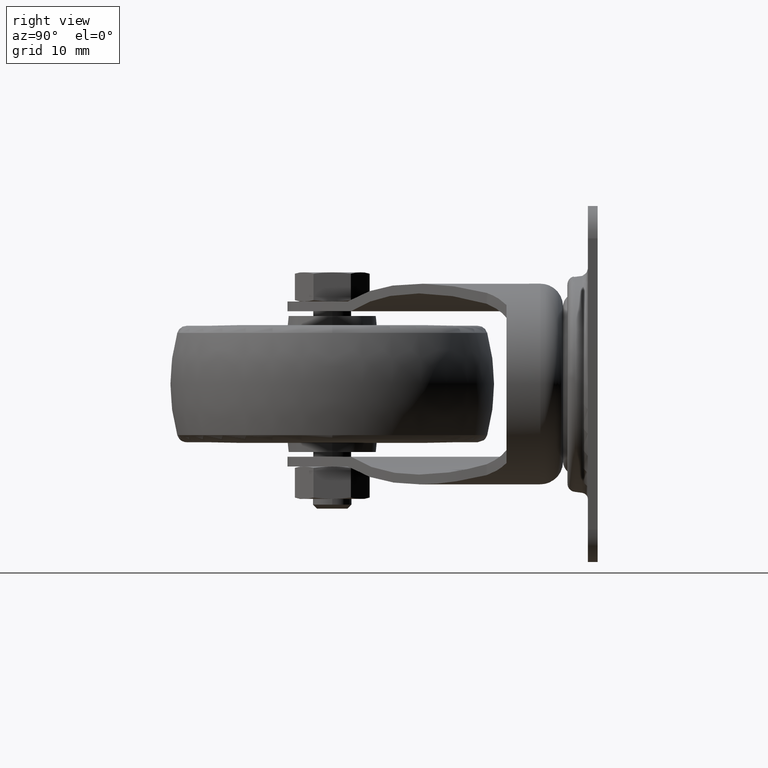
[diagram: clean part render]
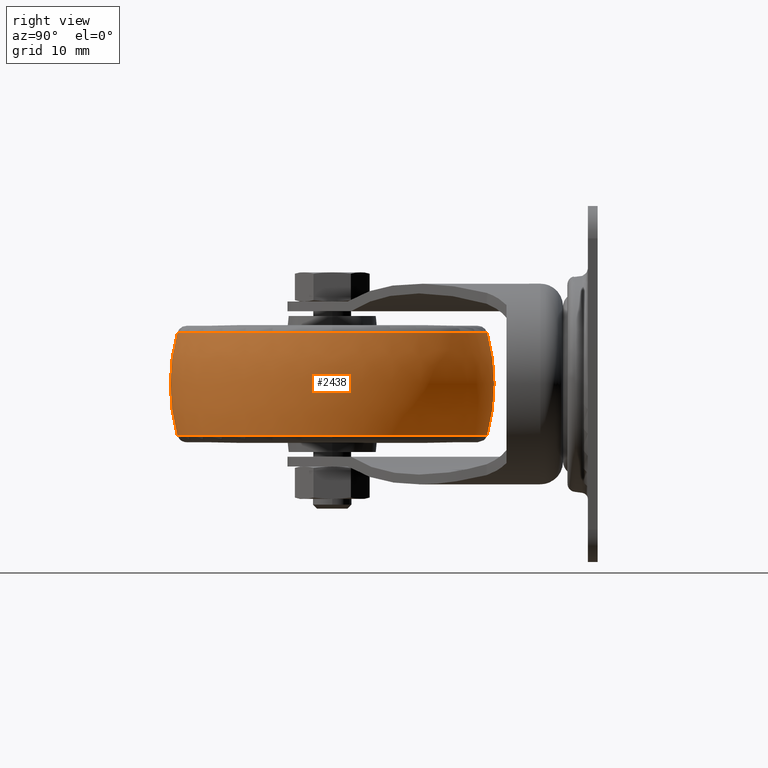
[diagram: same view with one face highlighted and labeled with its STEP entity id]
A machine part, right view. The second image highlights one B-rep face of the part: STEP entity #2438.
In plain terms, the highlighted face is a freeform B-spline surface patch.
Its self-contained STEP definition (entity closure, byte-faithful):
#268=(
BOUNDED_CURVE()
B_SPLINE_CURVE(2,(#3727,#3728,#3729),.UNSPECIFIED.,.F.,.F.)
B_SPLINE_CURVE_WITH_KNOTS((3,3),(-0.266294013401181,0.266294017118183),
 .UNSPECIFIED.)
CURVE()
GEOMETRIC_REPRESENTATION_ITEM()
RATIONAL_B_SPLINE_CURVE((1.,0.964752778374517,1.))
REPRESENTATION_ITEM('')
);
#269=(
BOUNDED_SURFACE()
B_SPLINE_SURFACE(2,2,((#3699,#3700,#3701,#3702,#3703,#3704,#3705,#3706,
#3707),(#3708,#3709,#3710,#3711,#3712,#3713,#3714,#3715,#3716),(#3717,#3718,
#3719,#3720,#3721,#3722,#3723,#3724,#3725)),.UNSPECIFIED.,.F.,.T.,.F.)
B_SPLINE_SURFACE_WITH_KNOTS((3,3),(3,2,2,2,3),(-0.266294017118183,0.266294013401181),
(-3.14159265358979,-1.5707963267949,0.,1.5707963267949,3.14159265358979),
 .UNSPECIFIED.)
GEOMETRIC_REPRESENTATION_ITEM()
RATIONAL_B_SPLINE_SURFACE(((1.,0.707106781186548,1.,0.707106781186548,1.,
0.707106781186548,1.,0.707106781186548,1.),(0.964752778374517,0.682183231757184,
0.964752778374517,0.682183231757184,0.964752778374517,0.682183231757184,
0.964752778374517,0.682183231757184,0.964752778374517),(1.,0.707106781186548,
1.,0.707106781186548,1.,0.707106781186548,1.,0.707106781186548,1.)))
REPRESENTATION_ITEM('')
SURFACE()
);
#486=FACE_OUTER_BOUND('',#667,.T.);
#667=EDGE_LOOP('',(#1607,#1608,#1609,#1610,#1611,#1612));
#918=CIRCLE('',#2625,23.942583365908);
#919=CIRCLE('',#2626,23.942583365908);
#920=CIRCLE('',#2627,23.9425833365632);
#921=CIRCLE('',#2628,23.9425833365632);
#1065=VERTEX_POINT('',#3695);
#1066=VERTEX_POINT('',#3696);
#1067=VERTEX_POINT('',#3726);
#1068=VERTEX_POINT('',#3730);
#1288=EDGE_CURVE('',#1065,#1066,#918,.T.);
#1289=EDGE_CURVE('',#1066,#1065,#919,.T.);
#1290=EDGE_CURVE('',#1066,#1067,#268,.T.);
#1291=EDGE_CURVE('',#1067,#1068,#920,.T.);
#1292=EDGE_CURVE('',#1068,#1067,#921,.T.);
#1607=ORIENTED_EDGE('',*,*,#1288,.F.);
#1608=ORIENTED_EDGE('',*,*,#1289,.F.);
#1609=ORIENTED_EDGE('',*,*,#1290,.T.);
#1610=ORIENTED_EDGE('',*,*,#1291,.T.);
#1611=ORIENTED_EDGE('',*,*,#1292,.T.);
#1612=ORIENTED_EDGE('',*,*,#1290,.F.);
#2438=ADVANCED_FACE('',(#486),#269,.F.);
#2625=AXIS2_PLACEMENT_3D('',#3697,#2972,#2973);
#2626=AXIS2_PLACEMENT_3D('',#3698,#2974,#2975);
#2627=AXIS2_PLACEMENT_3D('',#3731,#2976,#2977);
#2628=AXIS2_PLACEMENT_3D('',#3732,#2978,#2979);
#2972=DIRECTION('center_axis',(0.,0.,1.));
#2973=DIRECTION('ref_axis',(1.,0.,0.));
#2974=DIRECTION('center_axis',(0.,0.,1.));
#2975=DIRECTION('ref_axis',(1.,0.,0.));
#2976=DIRECTION('center_axis',(0.,0.,1.));
#2977=DIRECTION('ref_axis',(1.,0.,0.));
#2978=DIRECTION('center_axis',(0.,0.,1.));
#2979=DIRECTION('ref_axis',(1.,0.,0.));
#3695=CARTESIAN_POINT('',(23.942583365908,0.,7.89473673452561));
#3696=CARTESIAN_POINT('',(-23.942583365908,0.,7.89473673452561));
#3697=CARTESIAN_POINT('Origin',(0.,0.,7.89473673452561));
#3698=CARTESIAN_POINT('Origin',(0.,0.,7.89473673452561));
#3699=CARTESIAN_POINT('Ctrl Pts',(-23.9425833365632,0.,-7.89473684210527));
#3700=CARTESIAN_POINT('Ctrl Pts',(-23.9425833365632,-23.9425833365632,-7.89473684210527));
#3701=CARTESIAN_POINT('Ctrl Pts',(0.,-23.9425833365632,-7.89473684210527));
#3702=CARTESIAN_POINT('Ctrl Pts',(23.9425833365632,-23.9425833365632,-7.89473684210527));
#3703=CARTESIAN_POINT('Ctrl Pts',(23.9425833365632,0.,-7.89473684210527));
#3704=CARTESIAN_POINT('Ctrl Pts',(23.9425833365632,23.9425833365632,-7.89473684210527));
#3705=CARTESIAN_POINT('Ctrl Pts',(0.,23.9425833365632,-7.89473684210527));
#3706=CARTESIAN_POINT('Ctrl Pts',(-23.9425833365632,23.9425833365632,-7.89473684210527));
#3707=CARTESIAN_POINT('Ctrl Pts',(-23.9425833365632,0.,-7.89473684210527));
#3708=CARTESIAN_POINT('Ctrl Pts',(-26.0960493428649,0.,-5.7792050034422E-8));
#3709=CARTESIAN_POINT('Ctrl Pts',(-26.0960493428649,-26.0960493428649,-5.7792050034422E-8));
#3710=CARTESIAN_POINT('Ctrl Pts',(0.,-26.0960493428649,-5.7792050034422E-8));
#3711=CARTESIAN_POINT('Ctrl Pts',(26.0960493428649,-26.0960493428649,-5.7792050034422E-8));
#3712=CARTESIAN_POINT('Ctrl Pts',(26.0960493428649,0.,-5.7792050034422E-8));
#3713=CARTESIAN_POINT('Ctrl Pts',(26.0960493428649,26.0960493428649,-5.7792050034422E-8));
#3714=CARTESIAN_POINT('Ctrl Pts',(0.,26.0960493428649,-5.7792050034422E-8));
#3715=CARTESIAN_POINT('Ctrl Pts',(-26.0960493428649,26.0960493428649,-5.7792050034422E-8));
#3716=CARTESIAN_POINT('Ctrl Pts',(-26.0960493428649,0.,-5.7792050034422E-8));
#3717=CARTESIAN_POINT('Ctrl Pts',(-23.942583365908,0.,7.89473673452561));
#3718=CARTESIAN_POINT('Ctrl Pts',(-23.942583365908,-23.942583365908,7.89473673452561));
#3719=CARTESIAN_POINT('Ctrl Pts',(0.,-23.942583365908,7.89473673452561));
#3720=CARTESIAN_POINT('Ctrl Pts',(23.942583365908,-23.942583365908,7.89473673452561));
#3721=CARTESIAN_POINT('Ctrl Pts',(23.942583365908,0.,7.89473673452561));
#3722=CARTESIAN_POINT('Ctrl Pts',(23.942583365908,23.942583365908,7.89473673452561));
#3723=CARTESIAN_POINT('Ctrl Pts',(0.,23.942583365908,7.89473673452561));
#3724=CARTESIAN_POINT('Ctrl Pts',(-23.942583365908,23.942583365908,7.89473673452561));
#3725=CARTESIAN_POINT('Ctrl Pts',(-23.942583365908,0.,7.89473673452561));
#3726=CARTESIAN_POINT('',(-23.9425833365632,0.,-7.89473684210527));
#3727=CARTESIAN_POINT('Ctrl Pts',(-23.942583365908,0.,7.89473673452561));
#3728=CARTESIAN_POINT('Ctrl Pts',(-26.0960493428649,0.,-5.7792047813976E-8));
#3729=CARTESIAN_POINT('Ctrl Pts',(-23.9425833365632,0.,-7.89473684210527));
#3730=CARTESIAN_POINT('',(23.9425833365632,0.,-7.89473684210527));
#3731=CARTESIAN_POINT('Origin',(0.,0.,-7.89473684210527));
#3732=CARTESIAN_POINT('Origin',(0.,0.,-7.89473684210527));